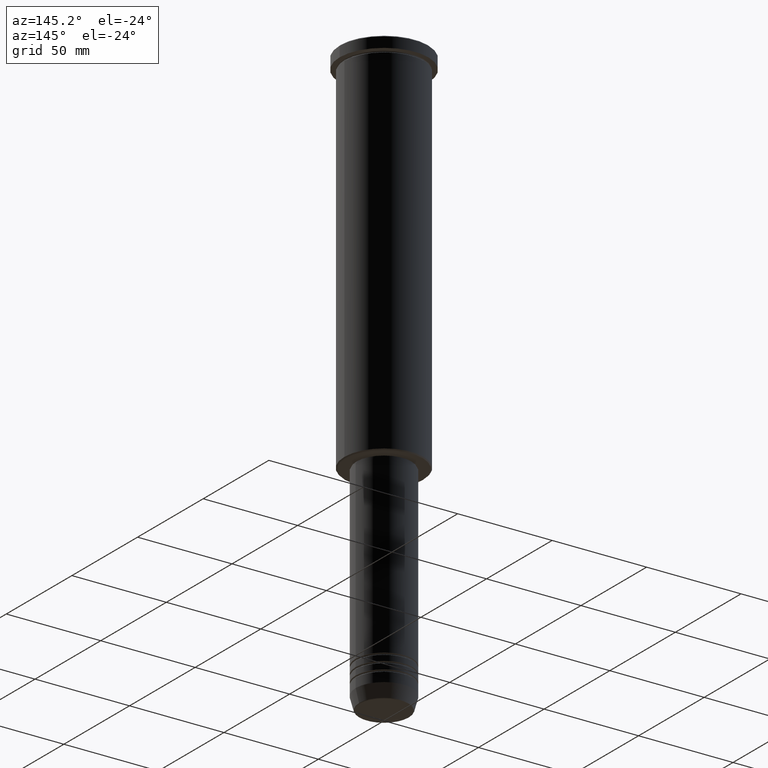
[diagram: clean part render]
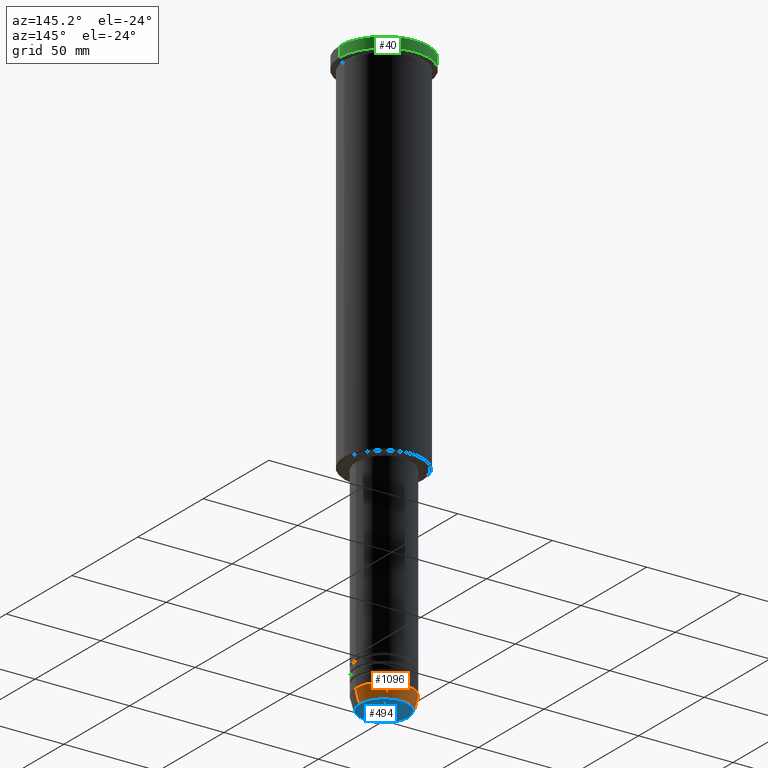
[diagram: same view with three faces highlighted in distinct colors, each labeled with its STEP entity id]
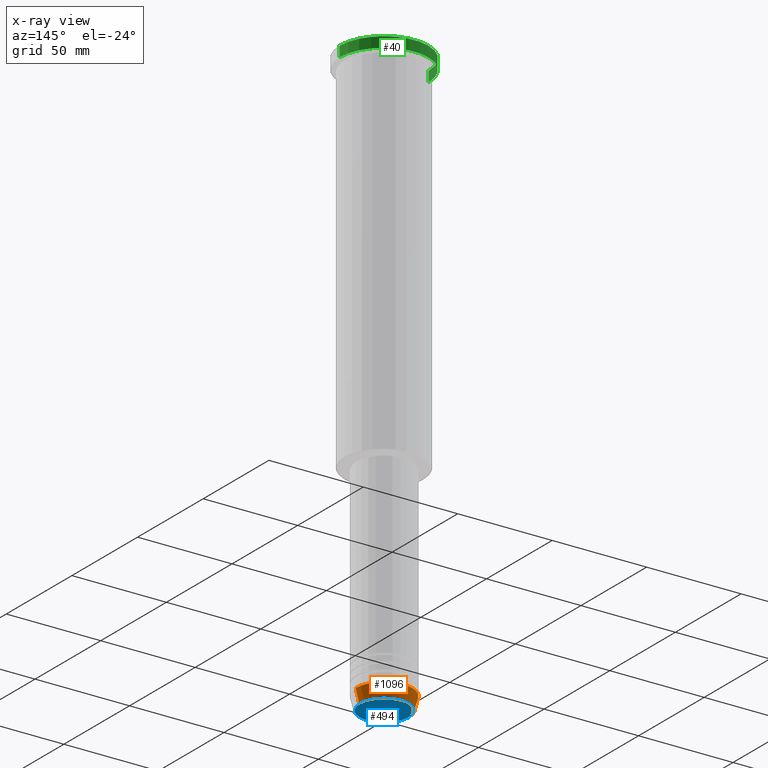
[diagram: x-ray of the same camera — body ghosted, the three highlighted faces saturated]
A machine part, auxiliary view with three faces highlighted in distinct colors.
The next image is the same camera in x-ray (body ghosted, the three faces saturated) — at least one of them is partly hidden behind the body in this view.
Their STEP definitions:

[orange] entity #1096 — the highlighted conical surface has half-angle 15 deg.
#39 = VERTEX_POINT ( 'NONE', #1050 ) ;
#52 = ORIENTED_EDGE ( 'NONE', *, *, #472, .T. ) ;
#55 = CARTESIAN_POINT ( 'NONE',  ( 0.000000000000000000, 0.000000000000000000, -304.0000000000000000 ) ) ;
#68 = VECTOR ( 'NONE', #1044, 1000.000000000000000 ) ;
#94 = VERTEX_POINT ( 'NONE', #333 ) ;
#128 = DIRECTION ( 'NONE',  ( -0.000000000000000000, -0.000000000000000000, 1.000000000000000000 ) ) ;
#132 = LINE ( 'NONE', #497, #68 ) ;
#258 = CIRCLE ( 'NONE', #755, 15.00000000000000000 ) ;
#259 = LINE ( 'NONE', #629, #916 ) ;
#265 = CARTESIAN_POINT ( 'NONE',  ( 0.000000000000000000, 0.000000000000000000, -304.0000000000000000 ) ) ;
#332 = ORIENTED_EDGE ( 'NONE', *, *, #1110, .F. ) ;
#333 = CARTESIAN_POINT ( 'NONE',  ( 15.00000000000000000, 0.000000000000000000, -304.0000000000000000 ) ) ;
#425 = DIRECTION ( 'NONE',  ( 1.000000000000000000, 0.000000000000000000, 0.000000000000000000 ) ) ;
#428 = CARTESIAN_POINT ( 'NONE',  ( 0.000000000000000000, 0.000000000000000000, -310.6294095225513274 ) ) ;
#472 = EDGE_CURVE ( 'NONE', #39, #495, #1051, .T. ) ;
#486 = EDGE_LOOP ( 'NONE', ( #52, #615, #332, #1091 ) ) ;
#495 = VERTEX_POINT ( 'NONE', #1178 ) ;
#497 = CARTESIAN_POINT ( 'NONE',  ( 15.00000000000000000, 0.000000000000000000, -304.0000000000000000 ) ) ;
#532 = DIRECTION ( 'NONE',  ( 1.000000000000000000, 0.000000000000000000, 0.000000000000000000 ) ) ;
#615 = ORIENTED_EDGE ( 'NONE', *, *, #852, .T. ) ;
#629 = CARTESIAN_POINT ( 'NONE',  ( -15.00000000000000000, 1.836970198721029589E-15, -304.0000000000000000 ) ) ;
#695 = DIRECTION ( 'NONE',  ( -0.000000000000000000, -0.000000000000000000, 1.000000000000000000 ) ) ;
#704 = DIRECTION ( 'NONE',  ( -0.000000000000000000, -0.000000000000000000, 1.000000000000000000 ) ) ;
#706 = DIRECTION ( 'NONE',  ( -0.2588190451025213501, 3.169619151431772337E-17, 0.9659258262890680902 ) ) ;
#721 = EDGE_CURVE ( 'NONE', #39, #94, #132, .T. ) ;
#742 = VERTEX_POINT ( 'NONE', #859 ) ;
#755 = AXIS2_PLACEMENT_3D ( 'NONE', #265, #704, #532 ) ;
#790 = DIRECTION ( 'NONE',  ( 1.000000000000000000, 0.000000000000000000, 0.000000000000000000 ) ) ;
#852 = EDGE_CURVE ( 'NONE', #495, #742, #259, .T. ) ;
#858 = CONICAL_SURFACE ( 'NONE', #1105, 15.00000000000000000, 0.2617993877991500740 ) ;
#859 = CARTESIAN_POINT ( 'NONE',  ( -15.00000000000000000, 1.836970198721029589E-15, -304.0000000000000000 ) ) ;
#870 = FACE_OUTER_BOUND ( 'NONE', #486, .T. ) ;
#916 = VECTOR ( 'NONE', #706, 1000.000000000000000 ) ;
#1044 = DIRECTION ( 'NONE',  ( 0.2588190451025213501, 0.000000000000000000, 0.9659258262890680902 ) ) ;
#1050 = CARTESIAN_POINT ( 'NONE',  ( 13.22365507213718772, 0.000000000000000000, -310.6294095225513274 ) ) ;
#1051 = CIRCLE ( 'NONE', #1179, 13.22365507213718772 ) ;
#1091 = ORIENTED_EDGE ( 'NONE', *, *, #721, .F. ) ;
#1096 = ADVANCED_FACE ( 'NONE', ( #870 ), #858, .T. ) ;
#1105 = AXIS2_PLACEMENT_3D ( 'NONE', #55, #128, #425 ) ;
#1110 = EDGE_CURVE ( 'NONE', #94, #742, #258, .T. ) ;
#1178 = CARTESIAN_POINT ( 'NONE',  ( -13.22365507213718772, 1.728200442216588386E-15, -310.6294095225513274 ) ) ;
#1179 = AXIS2_PLACEMENT_3D ( 'NONE', #428, #695, #790 ) ;

[blue] entity #494 — the highlighted planar face has unit normal (0, -0, 1).
#2 = ORIENTED_EDGE ( 'NONE', *, *, #897, .T. ) ;
#209 = CIRCLE ( 'NONE', #331, 12.74069215899265828 ) ;
#256 = FACE_OUTER_BOUND ( 'NONE', #538, .T. ) ;
#267 = CARTESIAN_POINT ( 'NONE',  ( 0.000000000000000000, 0.000000000000000000, -311.0000000000000000 ) ) ;
#268 = VERTEX_POINT ( 'NONE', #367 ) ;
#329 = CARTESIAN_POINT ( 'NONE',  ( -12.74069215899265828, 1.589857736427680246E-15, -311.0000000000000000 ) ) ;
#331 = AXIS2_PLACEMENT_3D ( 'NONE', #506, #991, #543 ) ;
#367 = CARTESIAN_POINT ( 'NONE',  ( 12.74069215899265828, 0.000000000000000000, -311.0000000000000000 ) ) ;
#468 = VERTEX_POINT ( 'NONE', #329 ) ;
#494 = ADVANCED_FACE ( 'NONE', ( #256 ), #820, .F. ) ;
#506 = CARTESIAN_POINT ( 'NONE',  ( 0.000000000000000000, 0.000000000000000000, -311.0000000000000000 ) ) ;
#538 = EDGE_LOOP ( 'NONE', ( #764, #2 ) ) ;
#543 = DIRECTION ( 'NONE',  ( 1.000000000000000000, 0.000000000000000000, 0.000000000000000000 ) ) ;
#554 = AXIS2_PLACEMENT_3D ( 'NONE', #267, #712, #995 ) ;
#596 = EDGE_CURVE ( 'NONE', #268, #468, #209, .T. ) ;
#634 = AXIS2_PLACEMENT_3D ( 'NONE', #907, #1167, #635 ) ;
#635 = DIRECTION ( 'NONE',  ( 1.000000000000000000, 0.000000000000000000, 0.000000000000000000 ) ) ;
#712 = DIRECTION ( 'NONE',  ( 0.000000000000000000, 0.000000000000000000, -1.000000000000000000 ) ) ;
#764 = ORIENTED_EDGE ( 'NONE', *, *, #596, .T. ) ;
#820 = PLANE ( 'NONE',  #634 ) ;
#897 = EDGE_CURVE ( 'NONE', #468, #268, #950, .T. ) ;
#907 = CARTESIAN_POINT ( 'NONE',  ( 0.000000000000000000, 0.000000000000000000, -311.0000000000000000 ) ) ;
#950 = CIRCLE ( 'NONE', #554, 12.74069215899265828 ) ;
#991 = DIRECTION ( 'NONE',  ( 0.000000000000000000, 0.000000000000000000, -1.000000000000000000 ) ) ;
#995 = DIRECTION ( 'NONE',  ( 1.000000000000000000, 0.000000000000000000, 0.000000000000000000 ) ) ;
#1167 = DIRECTION ( 'NONE',  ( 0.000000000000000000, -0.000000000000000000, 1.000000000000000000 ) ) ;

[green] entity #40 — the highlighted cylindrical surface (partial cylindrical patch) has radius 23.5 mm, axis along (-0, -0, 1).
#9 = CARTESIAN_POINT ( 'NONE',  ( 23.50000000000000000, 0.000000000000000000, -5.999999999999993783 ) ) ;
#18 = VECTOR ( 'NONE', #574, 1000.000000000000000 ) ;
#40 = ADVANCED_FACE ( 'NONE', ( #212 ), #956, .T. ) ;
#145 = DIRECTION ( 'NONE',  ( 0.000000000000000000, 0.000000000000000000, -1.000000000000000000 ) ) ;
#200 = AXIS2_PLACEMENT_3D ( 'NONE', #1089, #454, #789 ) ;
#206 = CARTESIAN_POINT ( 'NONE',  ( -23.50000000000000000, 2.877919977996280320E-15, -5.999999999999993783 ) ) ;
#212 = FACE_OUTER_BOUND ( 'NONE', #658, .T. ) ;
#272 = EDGE_CURVE ( 'NONE', #1019, #955, #1182, .T. ) ;
#312 = VERTEX_POINT ( 'NONE', #9 ) ;
#355 = ORIENTED_EDGE ( 'NONE', *, *, #500, .T. ) ;
#363 = LINE ( 'NONE', #643, #18 ) ;
#454 = DIRECTION ( 'NONE',  ( -0.000000000000000000, -0.000000000000000000, 1.000000000000000000 ) ) ;
#500 = EDGE_CURVE ( 'NONE', #1041, #1019, #363, .T. ) ;
#564 = CARTESIAN_POINT ( 'NONE',  ( 23.50000000000000000, 0.000000000000000000, -0.4999999999999726885 ) ) ;
#574 = DIRECTION ( 'NONE',  ( -0.000000000000000000, -0.000000000000000000, 1.000000000000000000 ) ) ;
#590 = ORIENTED_EDGE ( 'NONE', *, *, #272, .T. ) ;
#603 = CIRCLE ( 'NONE', #931, 23.50000000000000000 ) ;
#623 = EDGE_CURVE ( 'NONE', #312, #1041, #603, .T. ) ;
#643 = CARTESIAN_POINT ( 'NONE',  ( -23.50000000000000000, 2.877919977996280320E-15, 0.000000000000000000 ) ) ;
#658 = EDGE_LOOP ( 'NONE', ( #753, #355, #590, #1101 ) ) ;
#669 = AXIS2_PLACEMENT_3D ( 'NONE', #734, #145, #707 ) ;
#707 = DIRECTION ( 'NONE',  ( 1.000000000000000000, 0.000000000000000000, 0.000000000000000000 ) ) ;
#734 = CARTESIAN_POINT ( 'NONE',  ( 0.000000000000000000, 0.000000000000000000, -0.4999999999999726885 ) ) ;
#739 = CARTESIAN_POINT ( 'NONE',  ( 0.000000000000000000, 0.000000000000000000, -5.999999999999993783 ) ) ;
#745 = DIRECTION ( 'NONE',  ( -0.000000000000000000, -0.000000000000000000, 1.000000000000000000 ) ) ;
#753 = ORIENTED_EDGE ( 'NONE', *, *, #623, .T. ) ;
#785 = LINE ( 'NONE', #968, #1067 ) ;
#789 = DIRECTION ( 'NONE',  ( 1.000000000000000000, 0.000000000000000000, 0.000000000000000000 ) ) ;
#833 = CARTESIAN_POINT ( 'NONE',  ( -23.50000000000000000, 2.877919977996280320E-15, -0.4999999999999726885 ) ) ;
#851 = DIRECTION ( 'NONE',  ( 1.000000000000000000, 0.000000000000000000, 0.000000000000000000 ) ) ;
#931 = AXIS2_PLACEMENT_3D ( 'NONE', #739, #745, #851 ) ;
#955 = VERTEX_POINT ( 'NONE', #564 ) ;
#956 = CYLINDRICAL_SURFACE ( 'NONE', #200, 23.50000000000000000 ) ;
#960 = DIRECTION ( 'NONE',  ( -0.000000000000000000, -0.000000000000000000, 1.000000000000000000 ) ) ;
#968 = CARTESIAN_POINT ( 'NONE',  ( 23.50000000000000000, 0.000000000000000000, 0.000000000000000000 ) ) ;
#1019 = VERTEX_POINT ( 'NONE', #833 ) ;
#1041 = VERTEX_POINT ( 'NONE', #206 ) ;
#1067 = VECTOR ( 'NONE', #960, 1000.000000000000000 ) ;
#1089 = CARTESIAN_POINT ( 'NONE',  ( 0.000000000000000000, 0.000000000000000000, 0.000000000000000000 ) ) ;
#1101 = ORIENTED_EDGE ( 'NONE', *, *, #1173, .F. ) ;
#1173 = EDGE_CURVE ( 'NONE', #312, #955, #785, .T. ) ;
#1182 = CIRCLE ( 'NONE', #669, 23.50000000000000000 ) ;